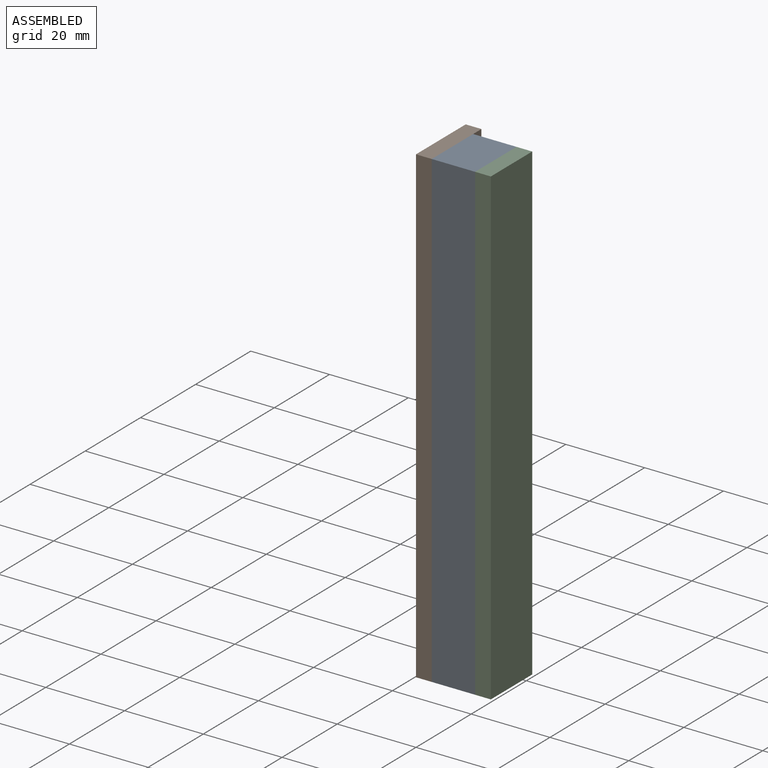
[diagram: assembled view]
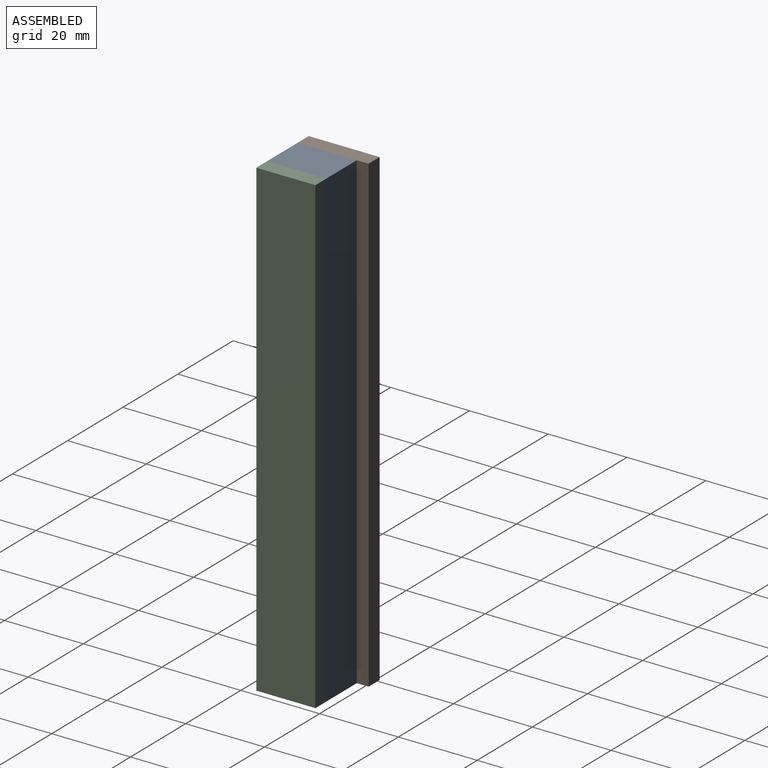
[diagram: assembled view, second angle]
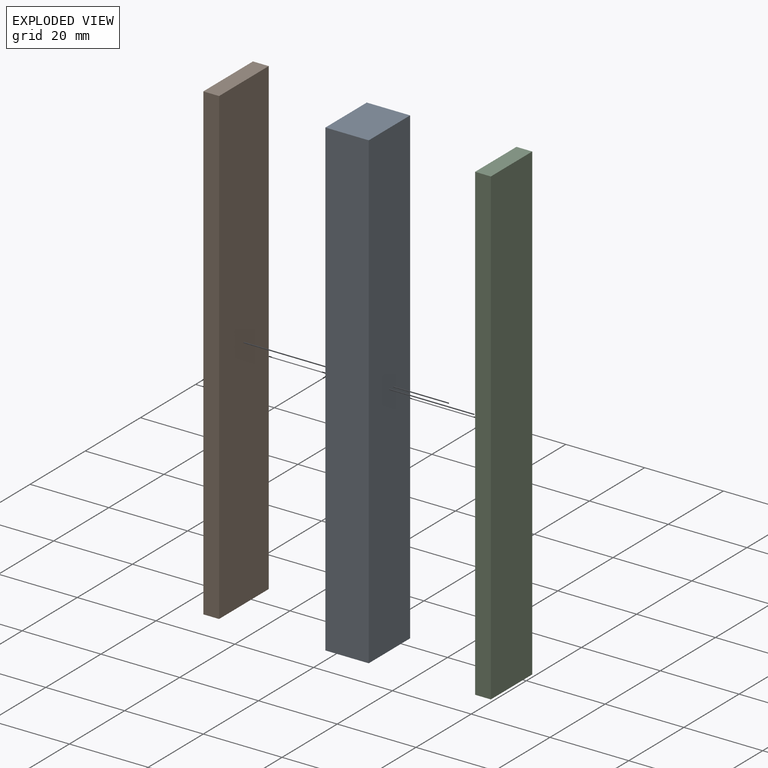
[diagram: exploded view]
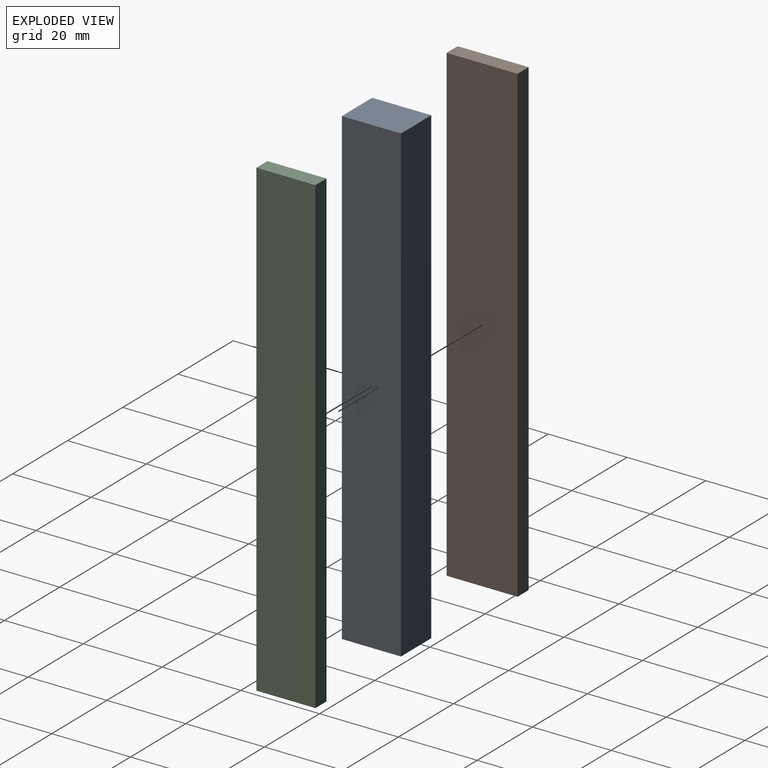
[diagram: exploded view, second angle]
ASSEMBLY  parts=3 mates=2
PART A: 6 faces, bbox 120x15x11 mm
  f0: plane 120x11mm, normal (0,1,0), area 1320mm2, adj f1,f3,f4,f5
  f1: plane 120x15mm, normal (0,0,1), area 1800mm2, adj f0,f2,f4,f5
  f2: plane 120x11mm, normal (0,-1,0), area 1320mm2, adj f1,f3,f4,f5
  f3: plane 120x15mm, normal (0,0,-1), area 1800mm2, adj f0,f2,f4,f5
  f4: plane 15x11mm, normal (1,0,0), area 165mm2, adj f0,f1,f2,f3
  f5: plane 15x11mm, normal (-1,0,0), area 165mm2, adj f0,f1,f2,f3
PART B: 6 faces, bbox 120x18x4 mm
  f0: plane 120x4mm, normal (0,1,0), area 480mm2, adj f1,f3,f4,f5
  f1: plane 120x18mm, normal (0,0,1), area 2160mm2, adj f0,f2,f4,f5
  f2: plane 120x4mm, normal (0,-1,0), area 480mm2, adj f1,f3,f4,f5
  f3: plane 120x18mm, normal (0,0,-1), area 2160mm2, adj f0,f2,f4,f5
  f4: plane 18x4mm, normal (1,0,0), area 72mm2, adj f0,f1,f2,f3
  f5: plane 18x4mm, normal (-1,0,0), area 72mm2, adj f0,f1,f2,f3
PART C: 6 faces, bbox 120x15x4 mm
  f0: plane 120x4mm, normal (0,1,0), area 480mm2, adj f1,f3,f4,f5
  f1: plane 120x15mm, normal (0,0,1), area 1800mm2, adj f0,f2,f4,f5
  f2: plane 120x4mm, normal (0,-1,0), area 480mm2, adj f1,f3,f4,f5
  f3: plane 120x15mm, normal (0,0,-1), area 1800mm2, adj f0,f2,f4,f5
  f4: plane 15x4mm, normal (1,0,0), area 60mm2, adj f0,f1,f2,f3
  f5: plane 15x4mm, normal (-1,0,0), area 60mm2, adj f0,f1,f2,f3
PLACE A rot(axis=(-0.71,0,0.71),180deg) t=(-8,-7.5,60)mm
PLACE B rot(axis=(-0.71,0,0.71),180deg) t=(-15.5,-6,60)mm
PLACE C rot(axis=(0,-1,0),90deg) t=(-0.5,-7.5,-60)mm
MATE fastened B.f3 <-> A.f1  axis (1,0,0) through (-13.5,-6,0)mm
MATE fastened A.f3 <-> C.f1  axis (1,0,0) through (-2.5,-7.5,0)mm
